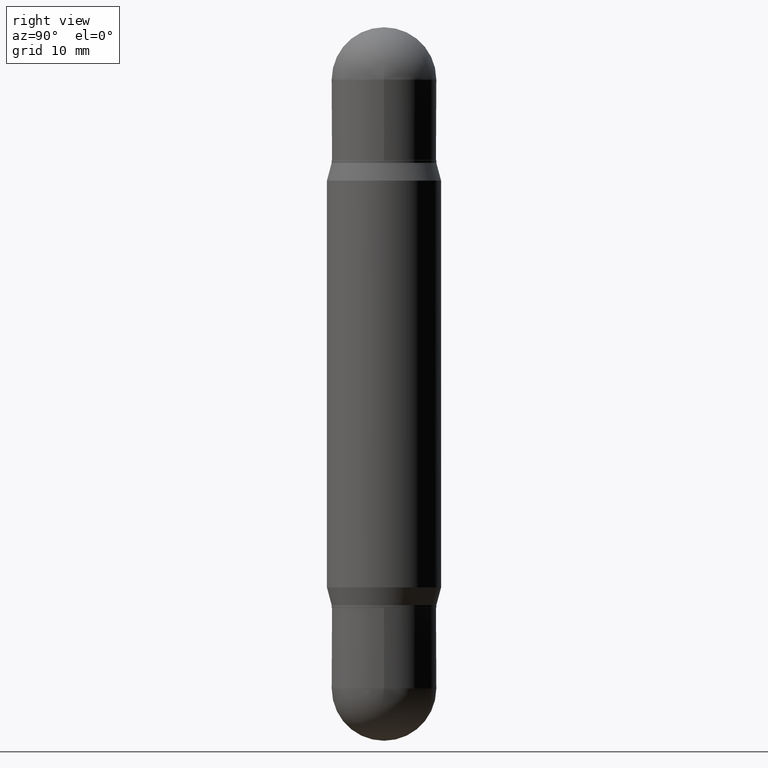
[diagram: clean part render]
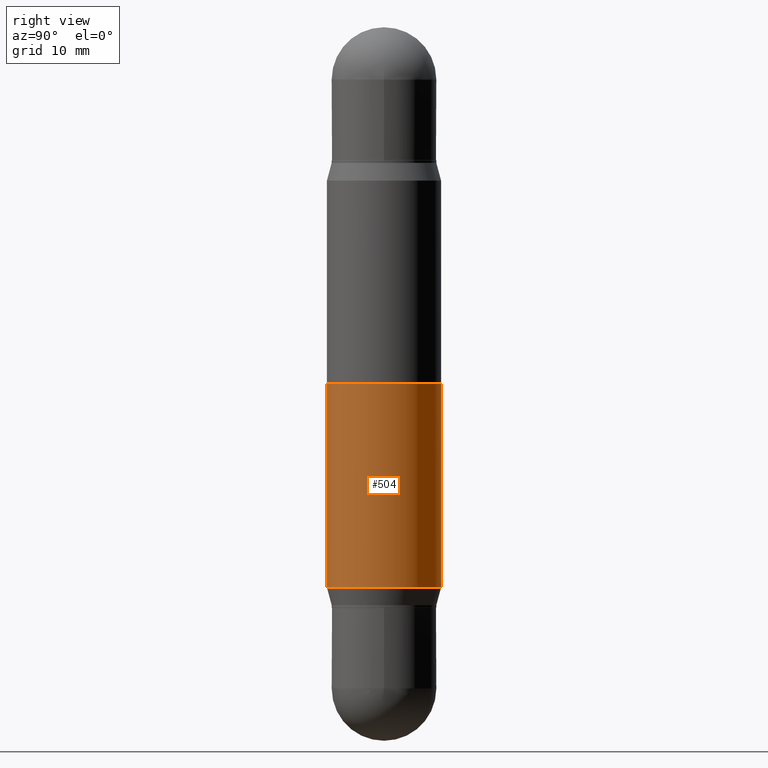
[diagram: same view with one face highlighted and labeled with its STEP entity id]
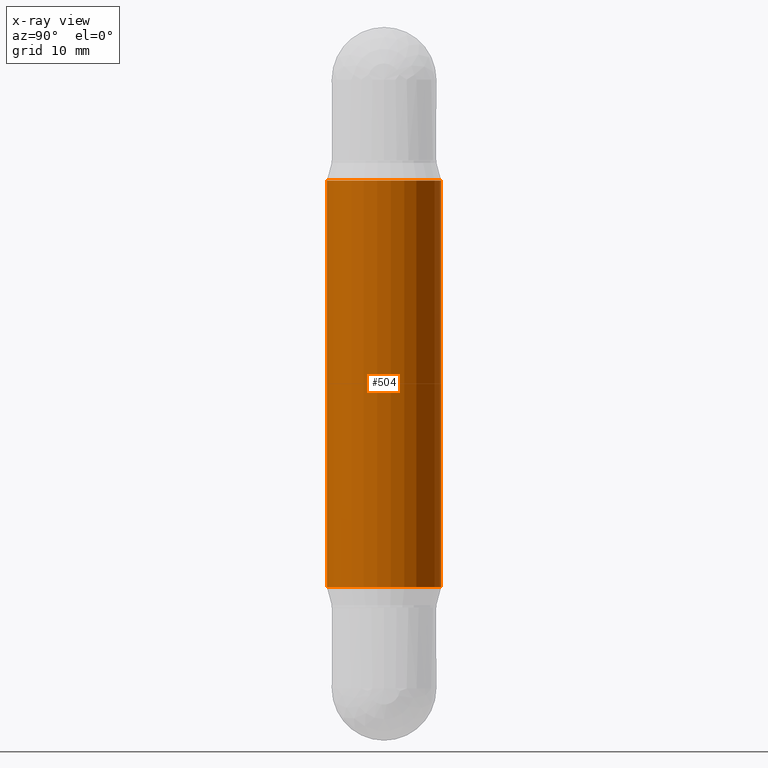
[diagram: x-ray of the same camera — body ghosted, the highlighted face saturated]
A machine part, right view. The second image highlights one B-rep face of the part: STEP entity #504.
The next image is the same camera in x-ray: the body ghosted, the highlighted face saturated — about 0% of this face is hidden behind the body in this view.
In plain terms, the highlighted cylindrical surface (partial cylindrical patch) has radius 5.9995 mm, axis along (-0, -0, -1).
Its self-contained STEP definition (entity closure, byte-faithful):
#31 = CARTESIAN_POINT ( 'NONE',  ( 5.664549006590998682E-29, -8.100904956436438645E-15, -2.318265201631271477 ) ) ;
#45 = AXIS2_PLACEMENT_3D ( 'NONE', #31, #547, #463 ) ;
#171 = EDGE_CURVE ( 'NONE', #720, #777, #639, .T. ) ;
#193 = DIRECTION ( 'NONE',  ( -6.982962677686265922E-15, -1.000000000000000000, 4.626330217890369336E-15 ) ) ;
#203 = ORIENTED_EDGE ( 'NONE', *, *, #171, .F. ) ;
#205 = DIRECTION ( 'NONE',  ( -2.443443055007287713E-29, -3.476713475992551705E-15, -1.000000000000000000 ) ) ;
#251 = EDGE_CURVE ( 'NONE', #720, #783, #1029, .T. ) ;
#253 = VECTOR ( 'NONE', #929, 39.37007874015748143 ) ;
#267 = CARTESIAN_POINT ( 'NONE',  ( -1.649375784469495934E-15, -0.2362000000000102629, -2.952799999999998537 ) ) ;
#282 = CARTESIAN_POINT ( 'NONE',  ( 0.000000000000000000, -1.029212584771408642E-14, -2.952799999999999869 ) ) ;
#295 = VECTOR ( 'NONE', #419, 39.37007874015748143 ) ;
#318 = ORIENTED_EDGE ( 'NONE', *, *, #251, .T. ) ;
#369 = EDGE_CURVE ( 'NONE', #777, #716, #849, .T. ) ;
#383 = AXIS2_PLACEMENT_3D ( 'NONE', #282, #205, #193 ) ;
#419 = DIRECTION ( 'NONE',  ( -2.443443055007287433E-29, -3.476713475992551705E-15, -1.000000000000000000 ) ) ;
#430 = AXIS2_PLACEMENT_3D ( 'NONE', #752, #755, #575 ) ;
#463 = DIRECTION ( 'NONE',  ( -6.982962677686265922E-15, -1.000000000000000000, 3.469747663417777397E-15 ) ) ;
#504 = ADVANCED_FACE ( 'NONE', ( #976 ), #1056, .T. ) ;
#527 = EDGE_LOOP ( 'NONE', ( #1038, #203, #318, #1101 ) ) ;
#547 = DIRECTION ( 'NONE',  ( -2.443443055007287713E-29, 3.494382329828422132E-15, 1.000000000000000000 ) ) ;
#575 = DIRECTION ( 'NONE',  ( -6.982962677686265922E-15, -1.000000000000000000, 3.469747663417777397E-15 ) ) ;
#602 = CARTESIAN_POINT ( 'NONE',  ( 1.620449627073671761E-15, 0.2361999999999919164, -2.318265201631272365 ) ) ;
#615 = CARTESIAN_POINT ( 'NONE',  ( -1.649375784469439333E-15, -0.2362000000000080979, -2.318265201631270589 ) ) ;
#617 = CARTESIAN_POINT ( 'NONE',  ( 1.620449627073635473E-15, 0.2361999999999897237, -2.952800000000000757 ) ) ;
#639 = CIRCLE ( 'NONE', #430, 0.2361999999999999933 ) ;
#685 = CARTESIAN_POINT ( 'NONE',  ( 1.620449627073692271E-15, 0.2361999999999977728, -0.6345347983687291693 ) ) ;
#716 = VERTEX_POINT ( 'NONE', #602 ) ;
#720 = VERTEX_POINT ( 'NONE', #758 ) ;
#752 = CARTESIAN_POINT ( 'NONE',  ( 5.664549006590998682E-29, -2.232181980278054097E-15, -0.6345347983687283921 ) ) ;
#755 = DIRECTION ( 'NONE',  ( 2.443443055007287713E-29, 3.476713475992551705E-15, 1.000000000000000000 ) ) ;
#758 = CARTESIAN_POINT ( 'NONE',  ( -1.649375784469439136E-15, -0.2362000000000022137, -0.6345347983687275040 ) ) ;
#777 = VERTEX_POINT ( 'NONE', #685 ) ;
#783 = VERTEX_POINT ( 'NONE', #615 ) ;
#849 = LINE ( 'NONE', #617, #295 ) ;
#929 = DIRECTION ( 'NONE',  ( -2.443443055007287433E-29, -3.476713475992551705E-15, -1.000000000000000000 ) ) ;
#976 = FACE_OUTER_BOUND ( 'NONE', #527, .T. ) ;
#990 = EDGE_CURVE ( 'NONE', #783, #716, #1016, .T. ) ;
#1016 = CIRCLE ( 'NONE', #45, 0.2361999999999999933 ) ;
#1029 = LINE ( 'NONE', #267, #253 ) ;
#1038 = ORIENTED_EDGE ( 'NONE', *, *, #369, .F. ) ;
#1056 = CYLINDRICAL_SURFACE ( 'NONE', #383, 0.2361999999999999933 ) ;
#1101 = ORIENTED_EDGE ( 'NONE', *, *, #990, .T. ) ;